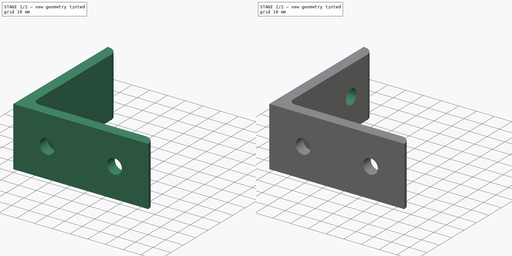
[diagram: build sequence overview — one tinted view per stage of 2, left to right]
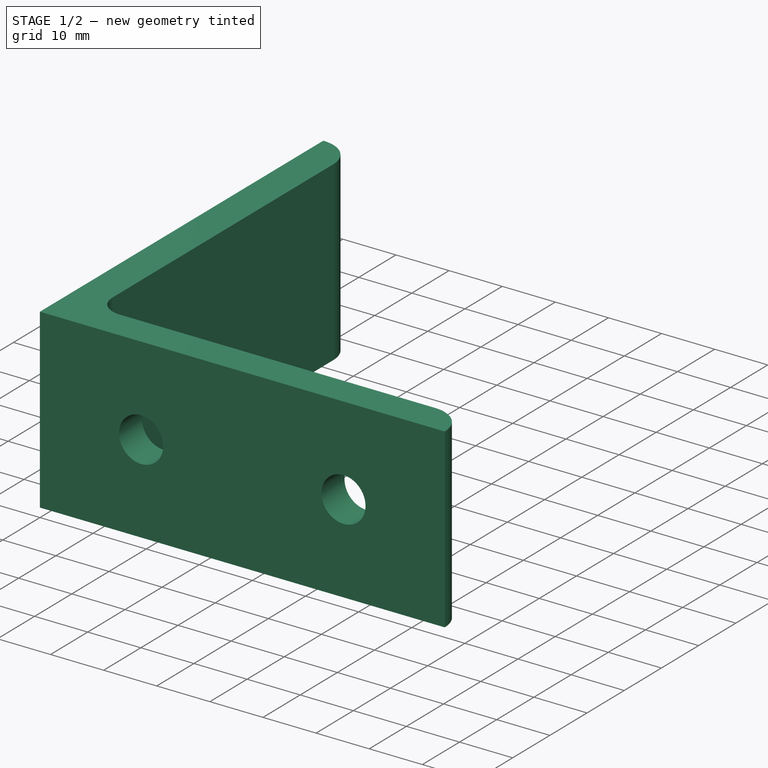
[diagram: stage 1 of 2 — iso view after this stage's code; geometry added in this stage tinted green]
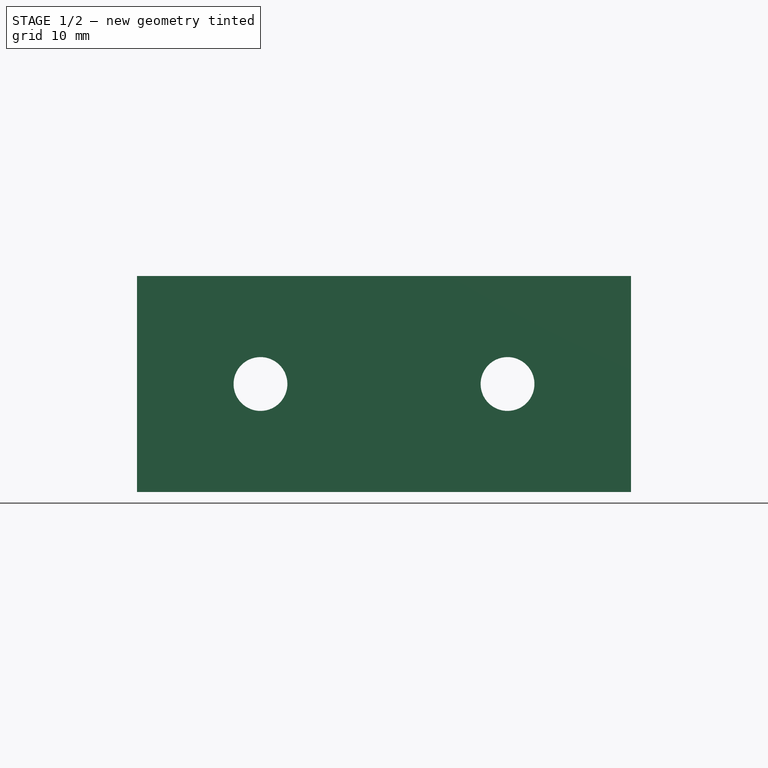
[diagram: stage 1 of 2 — front view after this stage's code; geometry added in this stage tinted green]
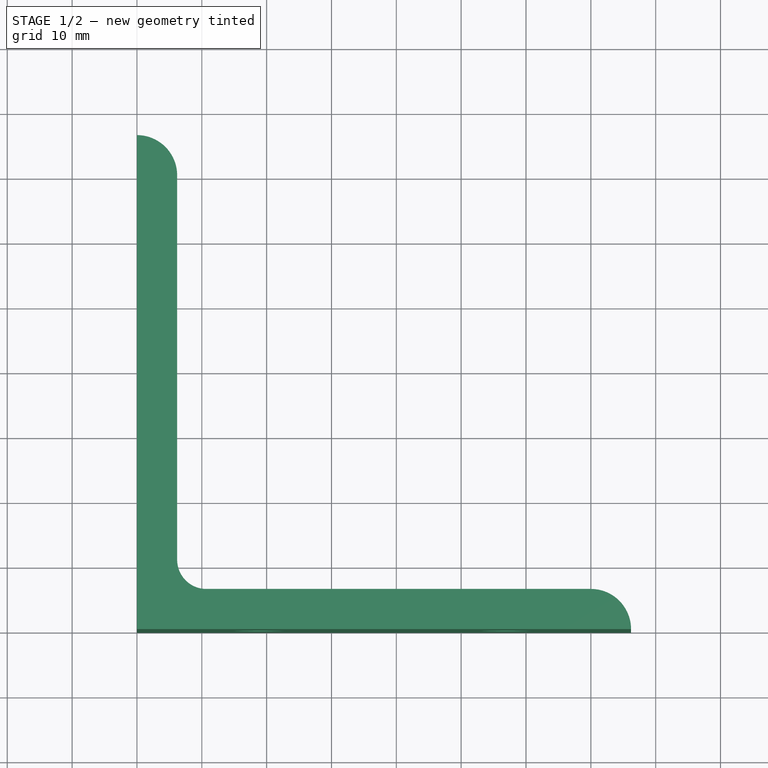
[diagram: stage 1 of 2 — top view after this stage's code; geometry added in this stage tinted green]
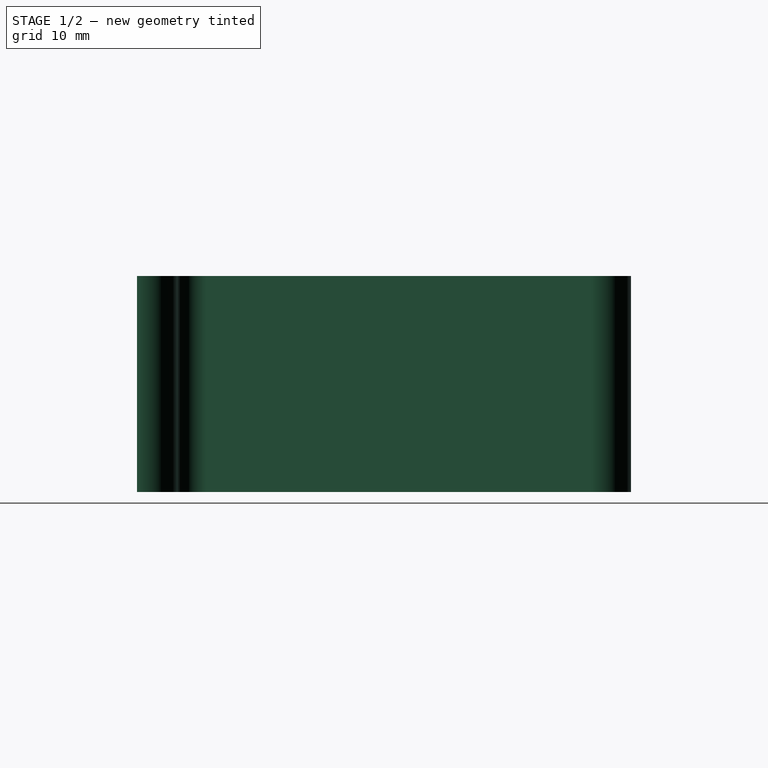
[diagram: stage 1 of 2 — right view after this stage's code; geometry added in this stage tinted green]
FCSTD DOCUMENT  (FreeCAD 0.18R)
Label: 1515-corner-2
License: All rights reserved
LicenseURL: http://en.wikipedia.org/wiki/All_rights_reserved
objects: Sketcher::SketchObject×3, PartDesign::Pocket×2, PartDesign::Pad×1, PartDesign::Body×1
note: 10 computed .brp shape members not serialized (recipe doc carries the construction recipe); baked Part::Feature solids carry a one-line shape summary decoded from their .brp

FEATURE [Sketcher::SketchObject] Sketch
  MapMode = 5
  Support = -> [XY_Plane]
  sketch-geometry (7):
    g0: LineSegment StartX=4e-16 StartY=76.2 StartZ=0 EndX=0 EndY=0 EndZ=0
    g1: LineSegment StartX=0 StartY=0 StartZ=0 EndX=76.2 EndY=0 EndZ=0
    g2: LineSegment StartX=6.2 StartY=70 StartZ=0 EndX=6.2 EndY=10.7 EndZ=0
    g3: LineSegment StartX=10.7 StartY=6.2 StartZ=0 EndX=70 EndY=6.2 EndZ=0
    g4: ArcOfCircle CenterX=10.7 CenterY=10.7 CenterZ=0 NormalX=0 NormalY=0 NormalZ=1 AngleXU=0 Radius=4.5 StartAngle=3.14159 EndAngle=4.71239
    g5: ArcOfCircle CenterX=0 CenterY=70 CenterZ=0 NormalX=0 NormalY=0 NormalZ=1 AngleXU=0 Radius=6.2 StartAngle=6e-16 EndAngle=1.5708
    g6: ArcOfCircle CenterX=70 CenterY=0 CenterZ=0 NormalX=0 NormalY=0 NormalZ=1 AngleXU=0 Radius=6.2 StartAngle=0 EndAngle=1.5708
  constraints (21):
    c: PointOnObject(g0,g-2)
    c: Coincident(g0,g-1)
    c: Coincident(g1,g0)
    c: PointOnObject(g1,g-1)
    c: DistanceY(g0,g0) = 76.2
    c: DistanceX(g1,g1) = 76.2
    c: Vertical(g2)
    c: Horizontal(g3)
    c: Tangent(g2,g4) = -1.5708
    c: Tangent(g3,g4) = -1.5708
    c: DistanceX(g2,g4) = 4.5
    c: DistanceX(g0,g2) = 6.2
    c: Coincident(g5,g0)
    c: Coincident(g5,g2)
    c: PointOnObject(g5,g-2)
    c: DistanceY(g5,g2) = 0
    c: DistanceY(g1,g3) = 6.2
    c: Coincident(g6,g3)
    c: Coincident(g6,g1)
    c: DistanceX(g6,g3) = 0
    c: PointOnObject(g6,g-1)
FEATURE [PartDesign::Pad] Pad
  Length = 33.33
  Length2 = 100
  Profile = -> Sketch
  Type = 0
FEATURE [Sketcher::SketchObject] Sketch001
  MapMode = 5
  Placement = pos=(0,0,0) rot=(1,0,0;1.5708rad)
  Support = -> [XZ_Plane]
  sketch-geometry (2):
    g0: Circle CenterX=19.05 CenterY=16.665 CenterZ=0 NormalX=0 NormalY=0 NormalZ=1 AngleXU=0 Radius=4.15
    g1: Circle CenterX=57.15 CenterY=16.665 CenterZ=0 NormalX=0 NormalY=0 NormalZ=1 AngleXU=0 Radius=4.15
  constraints (6):
    c: DistanceY(g0,g1) = 0
    c: Diameter(g0) = 8.3
    c: Equal(g1,g0)
    c: DistanceX(g0,g1) = 38.1
    c: DistanceX(g-1,g0) = 19.05
    c: DistanceY(g-1,g0) = 16.665
FEATURE [PartDesign::Pocket] Pocket
  BaseFeature = -> Pad
  Length = 5
  Length2 = 100
  Profile = -> Sketch001
  Type = 1
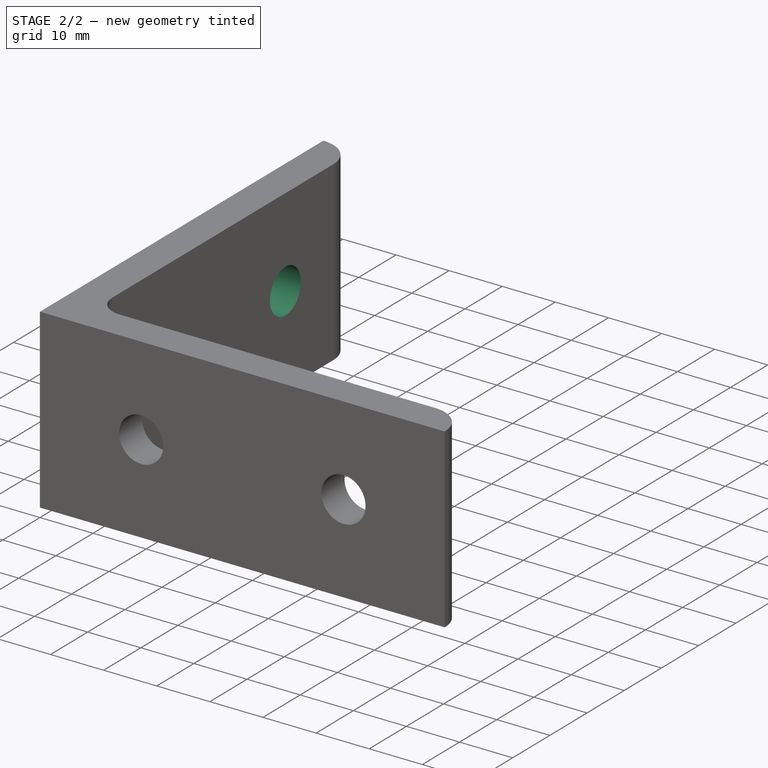
[diagram: stage 2 of 2 — iso view after this stage's code; geometry added in this stage tinted green]
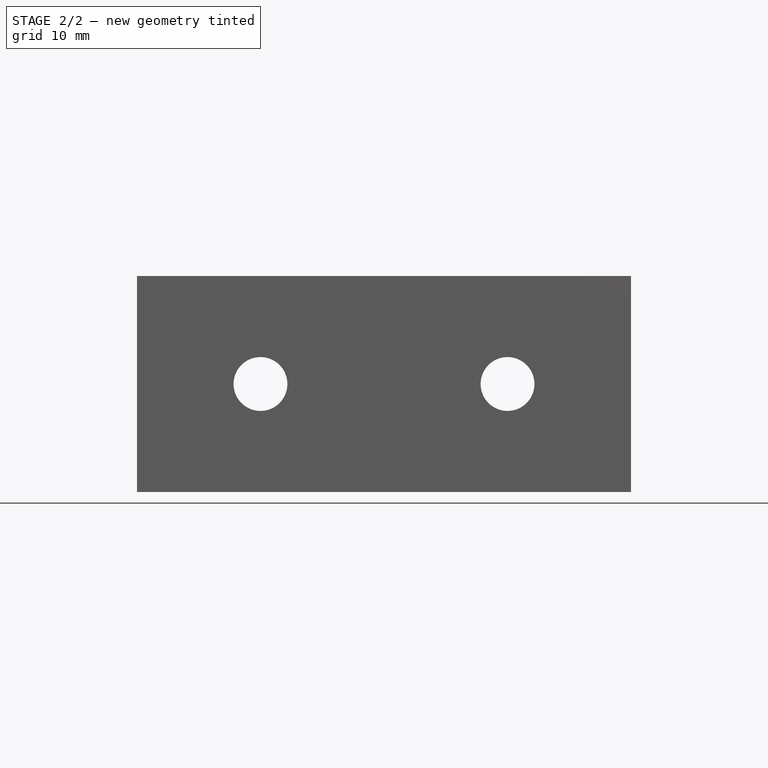
[diagram: stage 2 of 2 — front view after this stage's code; geometry added in this stage tinted green]
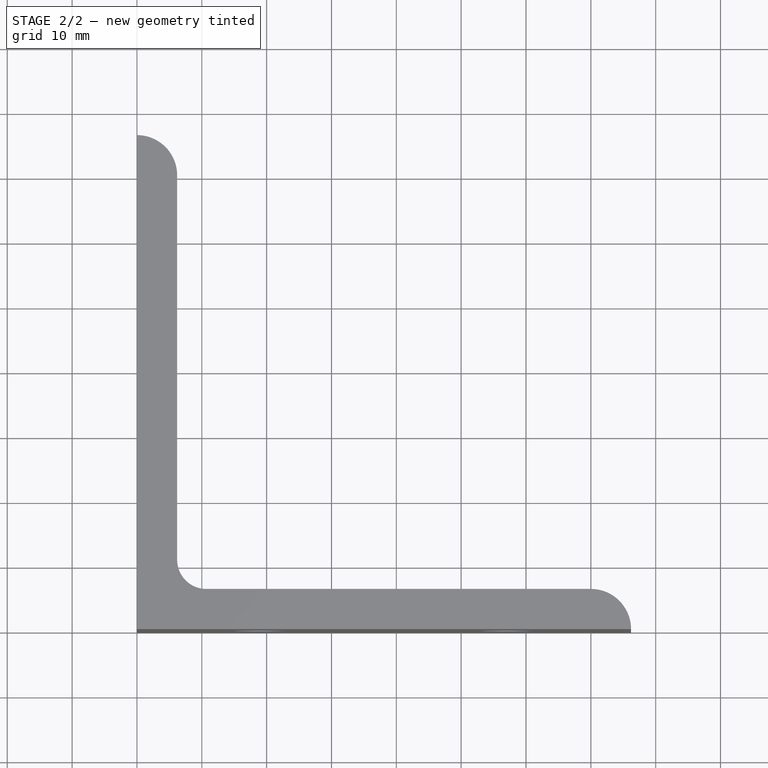
[diagram: stage 2 of 2 — top view after this stage's code; geometry added in this stage tinted green]
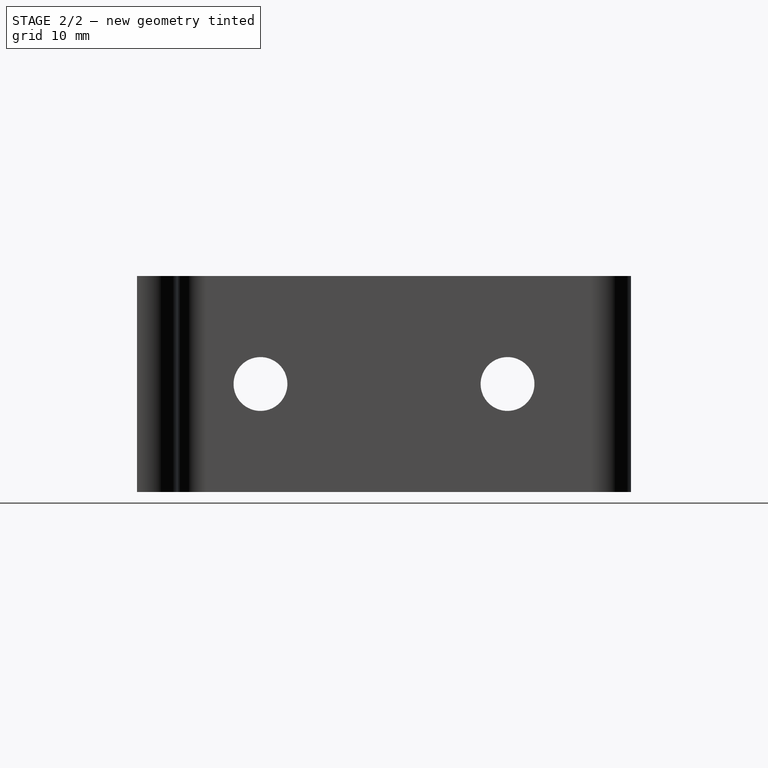
[diagram: stage 2 of 2 — right view after this stage's code; geometry added in this stage tinted green]
FEATURE [Sketcher::SketchObject] Sketch002
  MapMode = 5
  Placement = pos=(0,0,0) rot=(0.57735,0.57735,0.57735;2.0944rad)
  Support = -> [YZ_Plane]
  sketch-geometry (2):
    g0: Circle CenterX=19.05 CenterY=16.665 CenterZ=0 NormalX=0 NormalY=0 NormalZ=1 AngleXU=0 Radius=4.15
    g1: Circle CenterX=57.15 CenterY=16.665 CenterZ=0 NormalX=0 NormalY=0 NormalZ=1 AngleXU=0 Radius=4.15
  constraints (6):
    c: Diameter(g0) = 8.3
    c: Equal(g1,g0)
    c: DistanceY(g1,g0) = 0
    c: DistanceX(g0,g1) = 38.1
    c: DistanceX(g-1,g0) = 19.05
    c: DistanceY(g-1,g0) = 16.665
FEATURE [PartDesign::Pocket] Pocket001
  BaseFeature = -> Pocket
  Length = 5
  Length2 = 100
  Profile = -> Sketch002
  Reversed = true
  Type = 1
FEATURE [PartDesign::Body] Body  label="1515-corner-2"
  Group = -> [Sketch,Pad,Sketch001,Pocket,Sketch002,Pocket001]
  Origin = -> Origin
  Tip = -> Pocket001
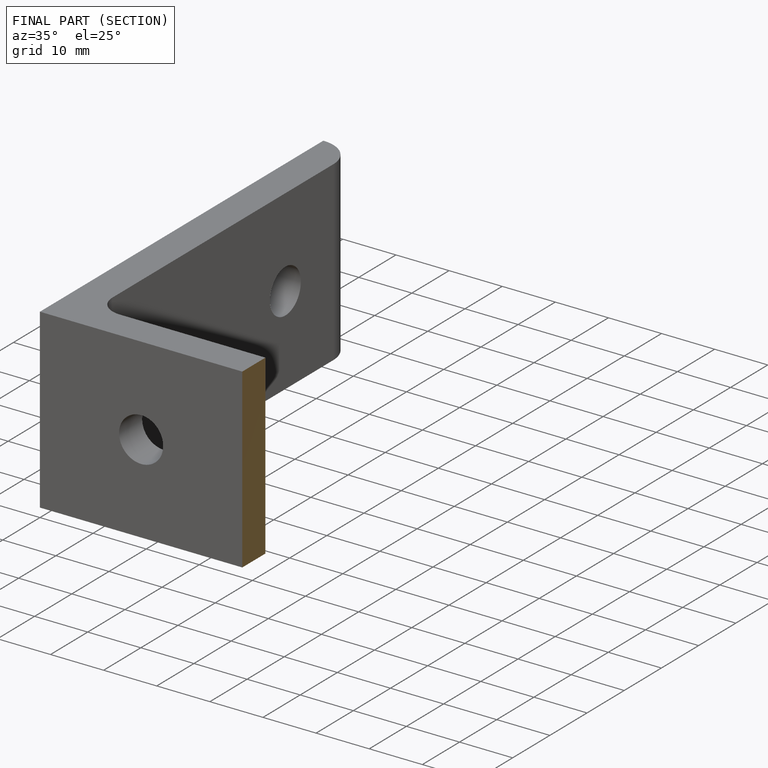
[diagram: finished part — half-section view (interior)]
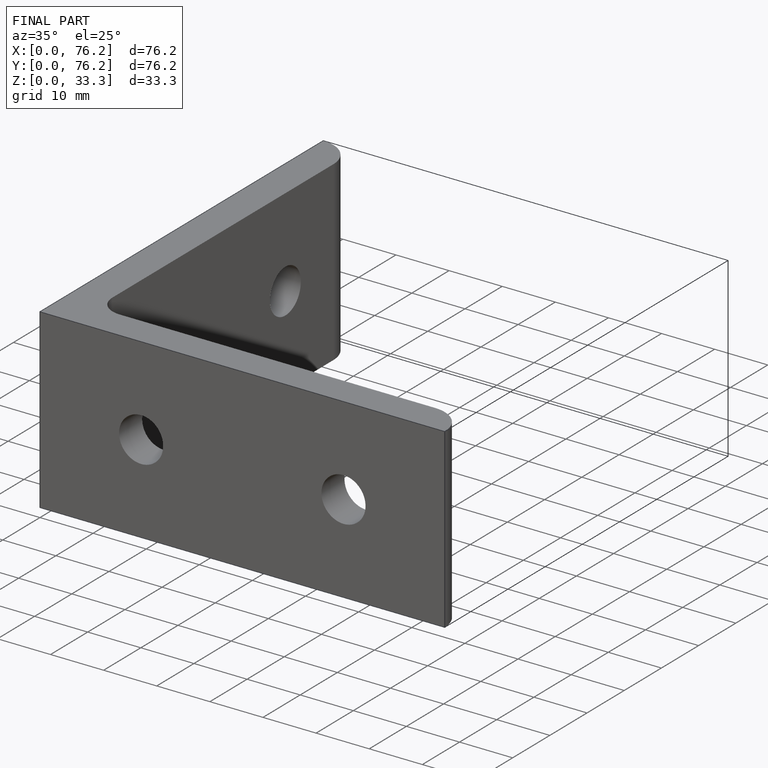
[diagram: finished part — iso view with bounding-box wireframe]
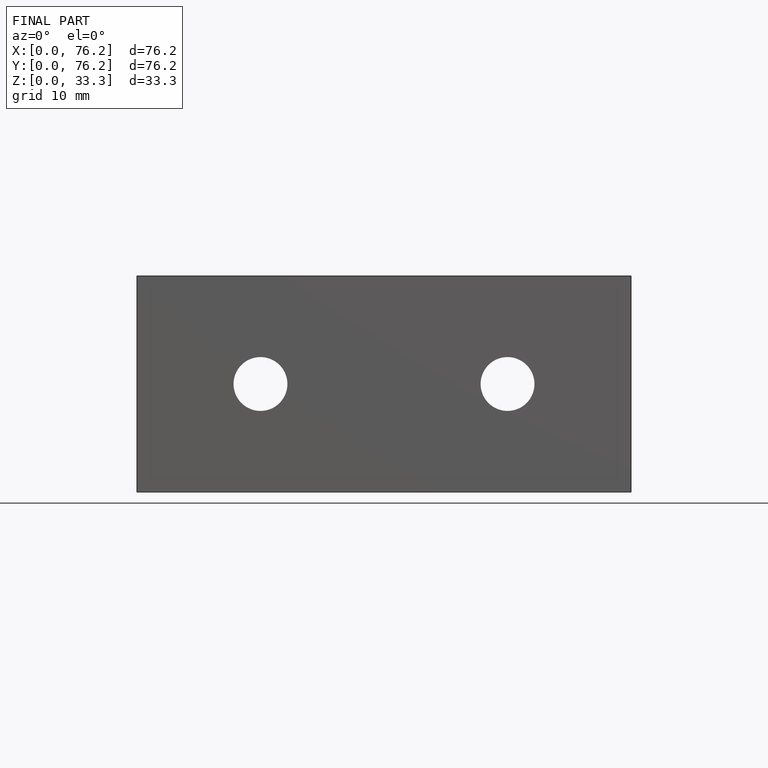
[diagram: finished part — front view with bounding-box wireframe]
